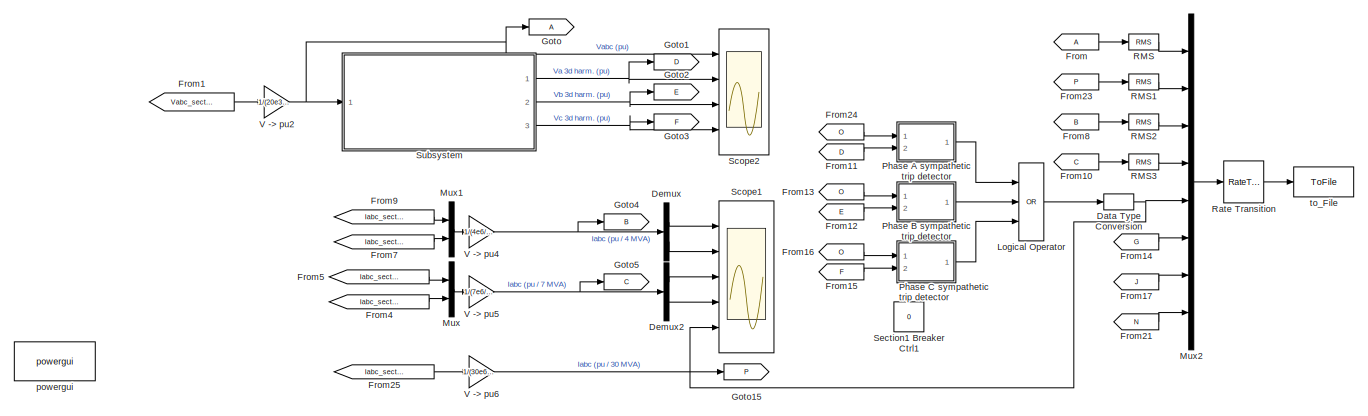
[diagram: root canvas - part 1/2, full width, top band]
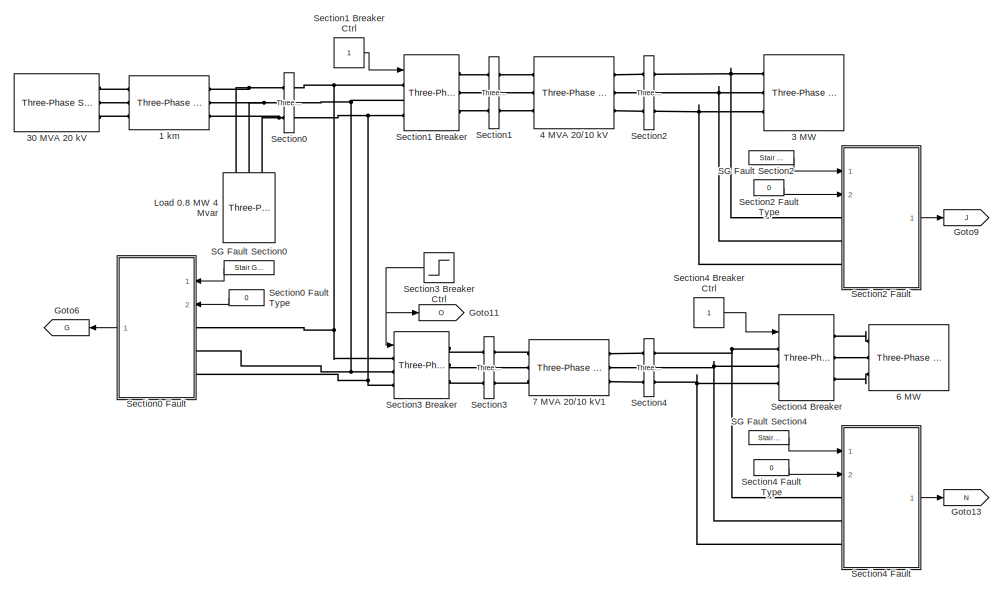
[diagram: root canvas - part 2/2, full width, bottom band]
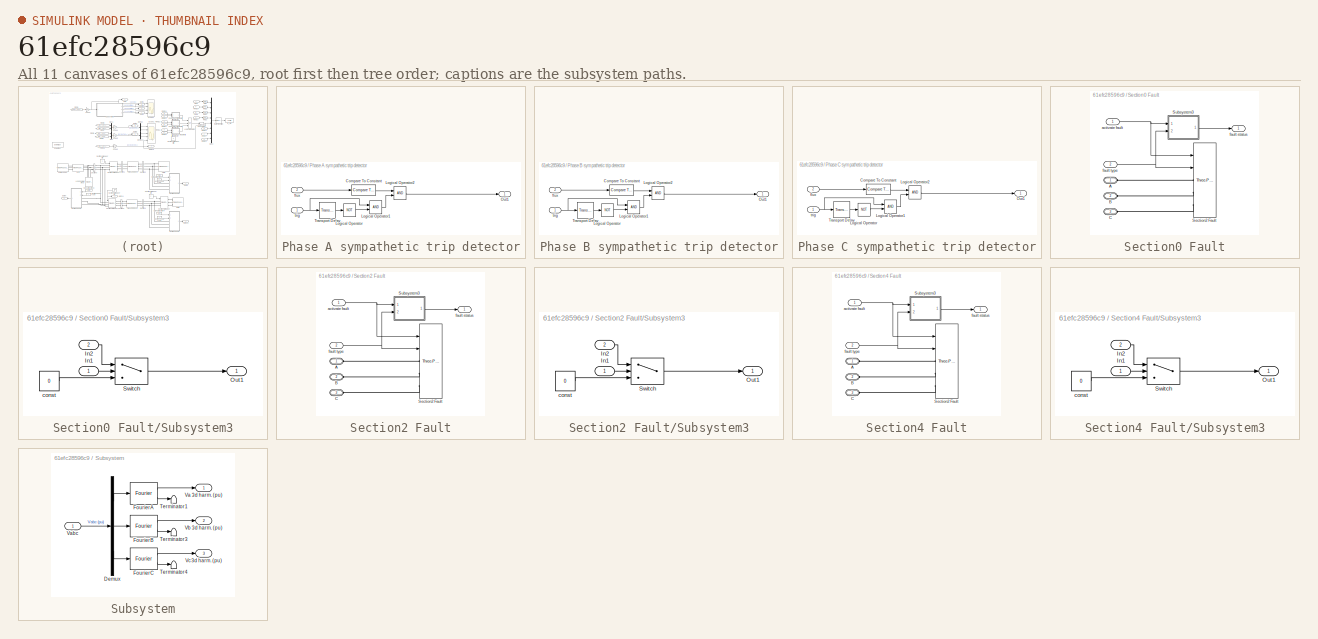
[diagram: thumbnail index - all 11 canvases of the model, root first then tree order]
MODEL slx_61efc28596c9
KIND model
CONFIG AbsTol = auto
CONFIG EnableMultiTasking = off
CONFIG FixedStep = 0.0001
CONFIG MaxStep = auto
CONFIG MinStep = auto
CONFIG RelTol = 1e-3
CONFIG SampleTimeConstraint = Unconstrained
CONFIG Solver = FixedStepAuto
CONFIG SolverName = FixedStepAuto
CONFIG StartTime = 0.0
CONFIG StopTime = 1
BLOCK [Reference] 1 km  REF=powerlib/Elements/Three-Phase
PI Section Line
  AttributesFormatString = \n
  Ports = [0, 0, 0, 0, 0, 3, 3]
  SourceBlock = powerlib/Elements/Three-Phase\nPI Section Line
  SourceProductBaseCode = PS
  SourceProductName = Simscape Electrical
  SourceType = Three-Phase PI Section Line
BLOCK [Reference] 3 MW  REF=powerlib/Elements/Three-Phase
Series RLC Load
  AttributesFormatString = \n
  Ports = [0, 0, 0, 0, 0, 3]
  SourceBlock = powerlib/Elements/Three-Phase\nSeries RLC Load
  SourceProductBaseCode = PS
  SourceProductName = Simscape Electrical
  SourceType = Three-Phase Series RLC Load
BLOCK [Reference] 30 MVA 20 kV  REF=powerlib/Electrical
Sources/Three-Phase Source
  Ports = [0, 0, 0, 0, 0, 0, 3]
  SourceBlock = powerlib/Electrical\nSources/Three-Phase Source
  SourceProductBaseCode = PS
  SourceProductName = Simscape Electrical
  SourceType = Three-Phase Source
BLOCK [Reference] 4 MVA 20//10 kV  REF=powerlib/Elements/Three-Phase
Transformer
(Two Windings)
  Ports = [0, 0, 0, 0, 0, 3, 3]
  SourceBlock = powerlib/Elements/Three-Phase\nTransformer\n(Two Windings)
  SourceProductBaseCode = PS
  SourceProductName = Simscape Electrical
  SourceType = Three-Phase Transformer (Two Windings)
BLOCK [Reference] 6 MW  REF=powerlib/Elements/Three-Phase
Series RLC Load
  AttributesFormatString = \n
  Ports = [0, 0, 0, 0, 0, 3]
  SourceBlock = powerlib/Elements/Three-Phase\nSeries RLC Load
  SourceProductBaseCode = PS
  SourceProductName = Simscape Electrical
  SourceType = Three-Phase Series RLC Load
BLOCK [Reference] 7 MVA 20//10 kV1  REF=powerlib/Elements/Three-Phase
Transformer
(Two Windings)
  Ports = [0, 0, 0, 0, 0, 3, 3]
  SourceBlock = powerlib/Elements/Three-Phase\nTransformer\n(Two Windings)
  SourceProductBaseCode = PS
  SourceProductName = Simscape Electrical
  SourceType = Three-Phase Transformer (Two Windings)
BLOCK [DataTypeConversion] Data Type Conversion
  OutDataTypeStr = double
  OutMax = [1]
  OutMin = [0]
  RndMeth = Floor
  SaturateOnIntegerOverflow = off
BLOCK [Demux] Demux
  DisplayOption = bar
  Outputs = 2
  Ports = [1, 2]
BLOCK [Demux] Demux2
  DisplayOption = bar
  Outputs = 2
  Ports = [1, 2]
BLOCK [From] From
BLOCK [From] From1
  CloseFcn = tagdialog Close
  GotoTag = Vabc_section0
  TagVisibility = global
BLOCK [From] From10
  GotoTag = C
BLOCK [From] From11
  GotoTag = D
BLOCK [From] From12
  GotoTag = E
BLOCK [From] From13
  GotoTag = O
BLOCK [From] From14
  GotoTag = G
BLOCK [From] From15
  GotoTag = F
BLOCK [From] From16
  GotoTag = O
BLOCK [From] From17
  GotoTag = J
BLOCK [From] From21
  GotoTag = N
BLOCK [From] From23
  GotoTag = P
BLOCK [From] From24
  GotoTag = O
BLOCK [From] From25
  GotoTag = Iabc_section0
  TagVisibility = global
BLOCK [From] From4
  GotoTag = Iabc_section4
  TagVisibility = global
BLOCK [From] From5
  GotoTag = Iabc_section3
  TagVisibility = global
BLOCK [From] From7
  GotoTag = Iabc_section2
  TagVisibility = global
BLOCK [From] From8
  GotoTag = B
BLOCK [From] From9
  GotoTag = Iabc_section1
  TagVisibility = global
BLOCK [Goto] Goto
BLOCK [Goto] Goto1
  GotoTag = D
BLOCK [Goto] Goto11
  GotoTag = O
BLOCK [Goto] Goto13
  GotoTag = N
BLOCK [Goto] Goto15
  GotoTag = P
BLOCK [Goto] Goto2
  GotoTag = E
BLOCK [Goto] Goto3
  GotoTag = F
BLOCK [Goto] Goto4
  GotoTag = B
BLOCK [Goto] Goto5
  GotoTag = C
BLOCK [Goto] Goto6
  GotoTag = G
BLOCK [Goto] Goto9
  GotoTag = J
BLOCK [Reference] Load 0.8 MW 4 Mvar  REF=powerlib/Elements/Three-Phase
Parallel RLC Load
  AttributesFormatString = \n
  Ports = [0, 0, 0, 0, 0, 3]
  SourceBlock = powerlib/Elements/Three-Phase\nParallel RLC Load
  SourceProductBaseCode = PS
  SourceProductName = Simscape Electrical
  SourceType = Three-Phase Parallel RLC Load
BLOCK [Logic] Logical Operator
  AllPortsSameDT = off
  Inputs = 3
  Operator = OR
  OutDataTypeStr = boolean
  Ports = [3, 1]
BLOCK [Mux] Mux
  DisplayOption = bar
  Inputs = 2
  Ports = [2, 1]
BLOCK [Mux] Mux1
  DisplayOption = bar
  Inputs = 2
  Ports = [2, 1]
BLOCK [Mux] Mux2
  DisplayOption = bar
  Inputs = 8
  Ports = [8, 1]
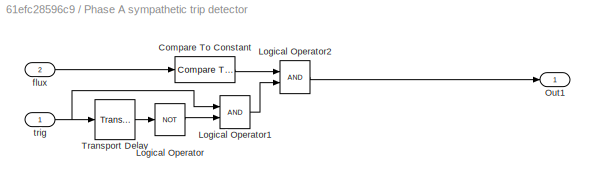
BLOCK [SubSystem] Phase A sympathetic trip detector
  Ports = [2, 1]
  RequestExecContextInheritance = off
BLOCK [Reference] Phase A sympathetic trip detector/Compare To Constant  REF=simulink/Logic and Bit
Operations/Compare
To Constant
  Ports = [1, 1]
  SourceBlock = simulink/Logic and Bit\nOperations/Compare\nTo Constant
  SourceProductBaseCode = SL
  SourceProductName = Simulink
  SourceType = Compare To Constant
BLOCK [Logic] Phase A sympathetic trip detector/Logical Operator
  AllPortsSameDT = off
  Operator = NOT
  OutDataTypeStr = boolean
  Ports = [1, 1]
BLOCK [Logic] Phase A sympathetic trip detector/Logical Operator1
  AllPortsSameDT = off
  OutDataTypeStr = boolean
  Ports = [2, 1]
BLOCK [Logic] Phase A sympathetic trip detector/Logical Operator2
  AllPortsSameDT = off
  OutDataTypeStr = boolean
  Ports = [2, 1]
BLOCK [Outport] Phase A sympathetic trip detector/Out1
  IconDisplay = Port number
BLOCK [TransportDelay] Phase A sympathetic trip detector/Transport Delay
  BufferSize = 4096
  DelayTime = 0.4
  Ports = [1, 1]
BLOCK [Inport] Phase A sympathetic trip detector/flux
  IconDisplay = Port number
  Port = 2
BLOCK [Inport] Phase A sympathetic trip detector/trig
  IconDisplay = Port number
BLOCK [SubSystem] Phase B sympathetic trip detector
  Ports = [2, 1]
  RequestExecContextInheritance = off
BLOCK [Reference] Phase B sympathetic trip detector/Compare To Constant  REF=simulink/Logic and Bit
Operations/Compare
To Constant
  Ports = [1, 1]
  SourceBlock = simulink/Logic and Bit\nOperations/Compare\nTo Constant
  SourceProductBaseCode = SL
  SourceProductName = Simulink
  SourceType = Compare To Constant
BLOCK [Logic] Phase B sympathetic trip detector/Logical Operator
  AllPortsSameDT = off
  Operator = NOT
  OutDataTypeStr = boolean
  Ports = [1, 1]
BLOCK [Logic] Phase B sympathetic trip detector/Logical Operator1
  AllPortsSameDT = off
  OutDataTypeStr = boolean
  Ports = [2, 1]
BLOCK [Logic] Phase B sympathetic trip detector/Logical Operator2
  AllPortsSameDT = off
  OutDataTypeStr = boolean
  Ports = [2, 1]
BLOCK [Outport] Phase B sympathetic trip detector/Out1
  IconDisplay = Port number
BLOCK [TransportDelay] Phase B sympathetic trip detector/Transport Delay
  BufferSize = 4096
  DelayTime = 0.4
  Ports = [1, 1]
BLOCK [Inport] Phase B sympathetic trip detector/flux
  IconDisplay = Port number
  Port = 2
BLOCK [Inport] Phase B sympathetic trip detector/trig
  IconDisplay = Port number
BLOCK [SubSystem] Phase C sympathetic trip detector
  Ports = [2, 1]
  RequestExecContextInheritance = off
BLOCK [Reference] Phase C sympathetic trip detector/Compare To Constant  REF=simulink/Logic and Bit
Operations/Compare
To Constant
  Ports = [1, 1]
  SourceBlock = simulink/Logic and Bit\nOperations/Compare\nTo Constant
  SourceProductBaseCode = SL
  SourceProductName = Simulink
  SourceType = Compare To Constant
BLOCK [Logic] Phase C sympathetic trip detector/Logical Operator
  AllPortsSameDT = off
  Operator = NOT
  OutDataTypeStr = boolean
  Ports = [1, 1]
BLOCK [Logic] Phase C sympathetic trip detector/Logical Operator1
  AllPortsSameDT = off
  OutDataTypeStr = boolean
  Ports = [2, 1]
BLOCK [Logic] Phase C sympathetic trip detector/Logical Operator2
  AllPortsSameDT = off
  OutDataTypeStr = boolean
  Ports = [2, 1]
BLOCK [Outport] Phase C sympathetic trip detector/Out1
  IconDisplay = Port number
BLOCK [TransportDelay] Phase C sympathetic trip detector/Transport Delay
  BufferSize = 4096
  DelayTime = 0.4
  Ports = [1, 1]
BLOCK [Inport] Phase C sympathetic trip detector/flux
  IconDisplay = Port number
  Port = 2
BLOCK [Inport] Phase C sympathetic trip detector/trig
  IconDisplay = Port number
BLOCK [Reference] RMS  REF=powerlib_meascontrol/Measurements/RMS
  Ports = [1, 1]
  SourceBlock = powerlib_meascontrol/Measurements/RMS
  SourceProductBaseCode = PS
  SourceProductName = Simscape Electrical
  SourceType = RMS
BLOCK [Reference] RMS1  REF=powerlib_meascontrol/Measurements/RMS
  Ports = [1, 1]
  SourceBlock = powerlib_meascontrol/Measurements/RMS
  SourceProductBaseCode = PS
  SourceProductName = Simscape Electrical
  SourceType = RMS
BLOCK [Reference] RMS2  REF=powerlib_meascontrol/Measurements/RMS
  Ports = [1, 1]
  SourceBlock = powerlib_meascontrol/Measurements/RMS
  SourceProductBaseCode = PS
  SourceProductName = Simscape Electrical
  SourceType = RMS
BLOCK [Reference] RMS3  REF=powerlib_meascontrol/Measurements/RMS
  Ports = [1, 1]
  SourceBlock = powerlib_meascontrol/Measurements/RMS
  SourceProductBaseCode = PS
  SourceProductName = Simscape Electrical
  SourceType = RMS
BLOCK [RateTransition] Rate Transition
  OutPortSampleTime = 0.0005
BLOCK [Reference] SG Fault Section0  REF=powerlib_meascontrol/Pulse & Signal
Generators/Stair
Generator
  Ports = [0, 1]
  SourceBlock = powerlib_meascontrol/Pulse & Signal\nGenerators/Stair\nGenerator
  SourceProductBaseCode = PS
  SourceProductName = Simscape Electrical
  SourceType = Stair Generator
BLOCK [Reference] SG Fault Section2  REF=powerlib_meascontrol/Pulse & Signal
Generators/Stair
Generator
  Ports = [0, 1]
  SourceBlock = powerlib_meascontrol/Pulse & Signal\nGenerators/Stair\nGenerator
  SourceProductBaseCode = PS
  SourceProductName = Simscape Electrical
  SourceType = Stair Generator
BLOCK [Reference] SG Fault Section4  REF=powerlib_meascontrol/Pulse & Signal
Generators/Stair
Generator
  Ports = [0, 1]
  SourceBlock = powerlib_meascontrol/Pulse & Signal\nGenerators/Stair\nGenerator
  SourceProductBaseCode = PS
  SourceProductName = Simscape Electrical
  SourceType = Stair Generator
BLOCK [Scope] Scope1
  Floating = off
  NumInputPorts = 5
  Ports = [5]
  ScopeSpecificationString = Simulink.scopes.TimeScopeBlockCfg('CurrentConfiguration', extmgr.ConfigurationSet(extmgr.Configuration('Core','General UI',true),extmgr.Configuration('Core','Source UI',true),extmgr.Configuration('Sources','WiredSimulink',true,'DataLoggingVariableName','ScopeData1','DataLogging',true),extmgr.Configuration('Visuals','Time Domain',true,'SerializedDisplays',{struct('MinYLimReal','-1.49544','MaxYLimRe...<+6316ch>
BLOCK [Scope] Scope2
  Floating = off
  NumInputPorts = 4
  Ports = [4]
  ScopeSpecificationString = Simulink.scopes.TimeScopeBlockCfg('CurrentConfiguration', extmgr.ConfigurationSet(extmgr.Configuration('Core','General UI',true),extmgr.Configuration('Core','Source UI',true),extmgr.Configuration('Sources','WiredSimulink',true,'DataLoggingVariableName','my_test_scope1','DataLogging',true),extmgr.Configuration('Visuals','Time Domain',true,'SerializedDisplays',{struct('MinYLimReal','-1.81795','MaxYL...<+3535ch>
BLOCK [Reference] Section0  REF=powerlib/Measurements/Three-Phase
V-I Measurement
  Ports = [0, 0, 0, 0, 0, 3, 3]
  SourceBlock = powerlib/Measurements/Three-Phase\nV-I Measurement
  SourceProductBaseCode = PS
  SourceProductName = Simscape Electrical
  SourceType = Three-Phase VI Measurement
BLOCK [SubSystem] Section0 Fault
  Ports = [2, 1, 0, 0, 0, 3]
  RequestExecContextInheritance = off
BLOCK [Constant] Section0 Fault Type
  Value = 0
BLOCK [PMIOPort] Section0 Fault/A
  Side = Left
BLOCK [PMIOPort] Section0 Fault/B
  Port = 2
  Side = Left
BLOCK [PMIOPort] Section0 Fault/C
  Port = 3
  Side = Left
BLOCK [Reference] Section0 Fault/Section2 Fault  REF=artemis/Tools /Custom Models/Three-Phase Fault
  Ports = [2, 0, 0, 0, 0, 3]
  SourceBlock = artemis/Tools /Custom Models/Three-Phase Fault
  SourceType = Three-Phase Fault
BLOCK [SubSystem] Section0 Fault/Subsystem3
  Ports = [2, 1]
  RequestExecContextInheritance = off
BLOCK [Inport] Section0 Fault/Subsystem3/In1
  IconDisplay = Port number
BLOCK [Inport] Section0 Fault/Subsystem3/In2
  IconDisplay = Port number
  Port = 2
BLOCK [Outport] Section0 Fault/Subsystem3/Out1
  IconDisplay = Port number
BLOCK [Switch] Section0 Fault/Subsystem3/Switch
  Criteria = u2 > Threshold
  InputSameDT = off
  SaturateOnIntegerOverflow = off
BLOCK [Constant] Section0 Fault/Subsystem3/const
  Value = 0
BLOCK [Inport] Section0 Fault/activate fault
  IconDisplay = Port number
BLOCK [Outport] Section0 Fault/fault status
  IconDisplay = Port number
BLOCK [Inport] Section0 Fault/fault type
  IconDisplay = Port number
  Port = 2
BLOCK [Reference] Section1  REF=powerlib/Measurements/Three-Phase
V-I Measurement
  Ports = [0, 0, 0, 0, 0, 3, 3]
  SourceBlock = powerlib/Measurements/Three-Phase\nV-I Measurement
  SourceProductBaseCode = PS
  SourceProductName = Simscape Electrical
  SourceType = Three-Phase VI Measurement
BLOCK [Reference] Section1 Breaker  REF=powerlib/Elements/Three-Phase Breaker
  Ports = [1, 0, 0, 0, 0, 3, 3]
  SourceBlock = powerlib/Elements/Three-Phase Breaker
  SourceProductBaseCode = PS
  SourceProductName = Simscape Electrical
  SourceType = Three-Phase Breaker
BLOCK [Constant] Section1 Breaker Ctrl
BLOCK [Constant] Section1 Breaker Ctrl1
  Value = 0
BLOCK [Reference] Section2  REF=powerlib/Measurements/Three-Phase
V-I Measurement
  Ports = [0, 0, 0, 0, 0, 3, 3]
  SourceBlock = powerlib/Measurements/Three-Phase\nV-I Measurement
  SourceProductBaseCode = PS
  SourceProductName = Simscape Electrical
  SourceType = Three-Phase VI Measurement
BLOCK [SubSystem] Section2 Fault
  Ports = [2, 1, 0, 0, 0, 3]
  RequestExecContextInheritance = off
BLOCK [Constant] Section2 Fault Type
  Value = 0
BLOCK [PMIOPort] Section2 Fault/A
  Side = Left
BLOCK [PMIOPort] Section2 Fault/B
  Port = 2
  Side = Left
BLOCK [PMIOPort] Section2 Fault/C
  Port = 3
  Side = Left
BLOCK [Reference] Section2 Fault/Section2 Fault  REF=artemis/Tools /Custom Models/Three-Phase Fault
  Ports = [2, 0, 0, 0, 0, 3]
  SourceBlock = artemis/Tools /Custom Models/Three-Phase Fault
  SourceType = Three-Phase Fault
BLOCK [SubSystem] Section2 Fault/Subsystem3
  Ports = [2, 1]
  RequestExecContextInheritance = off
BLOCK [Inport] Section2 Fault/Subsystem3/In1
  IconDisplay = Port number
BLOCK [Inport] Section2 Fault/Subsystem3/In2
  IconDisplay = Port number
  Port = 2
BLOCK [Outport] Section2 Fault/Subsystem3/Out1
  IconDisplay = Port number
BLOCK [Switch] Section2 Fault/Subsystem3/Switch
  Criteria = u2 > Threshold
  InputSameDT = off
  SaturateOnIntegerOverflow = off
BLOCK [Constant] Section2 Fault/Subsystem3/const
  Value = 0
BLOCK [Inport] Section2 Fault/activate fault
  IconDisplay = Port number
BLOCK [Outport] Section2 Fault/fault status
  IconDisplay = Port number
BLOCK [Inport] Section2 Fault/fault type
  IconDisplay = Port number
  Port = 2
BLOCK [Reference] Section3  REF=powerlib/Measurements/Three-Phase
V-I Measurement
  Ports = [0, 0, 0, 0, 0, 3, 3]
  SourceBlock = powerlib/Measurements/Three-Phase\nV-I Measurement
  SourceProductBaseCode = PS
  SourceProductName = Simscape Electrical
  SourceType = Three-Phase VI Measurement
BLOCK [Reference] Section3 Breaker  REF=powerlib/Elements/Three-Phase Breaker
  Ports = [1, 0, 0, 0, 0, 3, 3]
  SourceBlock = powerlib/Elements/Three-Phase Breaker
  SourceProductBaseCode = PS
  SourceProductName = Simscape Electrical
  SourceType = Three-Phase Breaker
BLOCK [Step] Section3 Breaker Ctrl
  SampleTime = 0
  Time = 0.5
BLOCK [Reference] Section4  REF=powerlib/Measurements/Three-Phase
V-I Measurement
  Ports = [0, 0, 0, 0, 0, 3, 3]
  SourceBlock = powerlib/Measurements/Three-Phase\nV-I Measurement
  SourceProductBaseCode = PS
  SourceProductName = Simscape Electrical
  SourceType = Three-Phase VI Measurement
BLOCK [Reference] Section4 Breaker  REF=powerlib/Elements/Three-Phase Breaker
  Ports = [1, 0, 0, 0, 0, 3, 3]
  SourceBlock = powerlib/Elements/Three-Phase Breaker
  SourceProductBaseCode = PS
  SourceProductName = Simscape Electrical
  SourceType = Three-Phase Breaker
BLOCK [Constant] Section4 Breaker Ctrl
BLOCK [SubSystem] Section4 Fault
  Ports = [2, 1, 0, 0, 0, 3]
  RequestExecContextInheritance = off
BLOCK [Constant] Section4 Fault Type
  Value = 0
BLOCK [PMIOPort] Section4 Fault/A
  Side = Left
BLOCK [PMIOPort] Section4 Fault/B
  Port = 2
  Side = Left
BLOCK [PMIOPort] Section4 Fault/C
  Port = 3
  Side = Left
BLOCK [Reference] Section4 Fault/Section2 Fault  REF=artemis/Tools /Custom Models/Three-Phase Fault
  Ports = [2, 0, 0, 0, 0, 3]
  SourceBlock = artemis/Tools /Custom Models/Three-Phase Fault
  SourceType = Three-Phase Fault
BLOCK [SubSystem] Section4 Fault/Subsystem3
  Ports = [2, 1]
  RequestExecContextInheritance = off
BLOCK [Inport] Section4 Fault/Subsystem3/In1
  IconDisplay = Port number
BLOCK [Inport] Section4 Fault/Subsystem3/In2
  IconDisplay = Port number
  Port = 2
BLOCK [Outport] Section4 Fault/Subsystem3/Out1
  IconDisplay = Port number
BLOCK [Switch] Section4 Fault/Subsystem3/Switch
  Criteria = u2 > Threshold
  InputSameDT = off
  SaturateOnIntegerOverflow = off
BLOCK [Constant] Section4 Fault/Subsystem3/const
  Value = 0
BLOCK [Inport] Section4 Fault/activate fault
  IconDisplay = Port number
BLOCK [Outport] Section4 Fault/fault status
  IconDisplay = Port number
BLOCK [Inport] Section4 Fault/fault type
  IconDisplay = Port number
  Port = 2
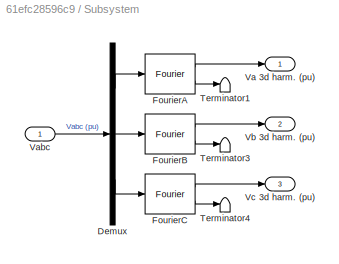
BLOCK [SubSystem] Subsystem
  Ports = [1, 3]
  RequestExecContextInheritance = off
BLOCK [Demux] Subsystem/Demux
  DisplayOption = bar
  Outputs = 3
  Ports = [1, 3]
BLOCK [Reference] Subsystem/FourierA  REF=powerlib_meascontrol/Measurements/Fourier
  Ports = [1, 2]
  SourceBlock = powerlib_meascontrol/Measurements/Fourier
  SourceProductBaseCode = PS
  SourceProductName = Simscape Electrical
  SourceType = Fourier
BLOCK [Reference] Subsystem/FourierB  REF=powerlib_meascontrol/Measurements/Fourier
  Ports = [1, 2]
  SourceBlock = powerlib_meascontrol/Measurements/Fourier
  SourceProductBaseCode = PS
  SourceProductName = Simscape Electrical
  SourceType = Fourier
BLOCK [Reference] Subsystem/FourierC  REF=powerlib_meascontrol/Measurements/Fourier
  Ports = [1, 2]
  SourceBlock = powerlib_meascontrol/Measurements/Fourier
  SourceProductBaseCode = PS
  SourceProductName = Simscape Electrical
  SourceType = Fourier
BLOCK [Terminator] Subsystem/Terminator1
BLOCK [Terminator] Subsystem/Terminator3
BLOCK [Terminator] Subsystem/Terminator4
BLOCK [Outport] Subsystem/Va 3d harm. (pu)
  IconDisplay = Port number
BLOCK [Inport] Subsystem/Vabc
  IconDisplay = Port number
BLOCK [Outport] Subsystem/Vb 3d harm. (pu)
  IconDisplay = Port number
  Port = 2
BLOCK [Outport] Subsystem/Vc 3d harm. (pu)
  IconDisplay = Port number
  Port = 3
BLOCK [Gain] V -> pu2
  Gain = 1/(20e3/sqrt(3)*sqrt(2))
BLOCK [Gain] V -> pu4
  Gain = 1/(4e6/20e3/sqrt(3)*sqrt(2))
BLOCK [Gain] V -> pu5
  Gain = 1/(7e6/20e3/sqrt(3)*sqrt(2))
BLOCK [Gain] V -> pu6
  Gain = 1/(30e6/20e3/sqrt(3)*sqrt(2))
BLOCK [Reference] powergui  REF=powerlib/powergui
  Ports = []
  Priority = 1
  SourceBlock = powerlib/powergui
  SourceProductBaseCode = PS
  SourceProductName = Simscape Electrical
  SourceType = PSB option menu block
BLOCK [ToFile] to_File
  Filename = test
  Ports = [1]
NET Data Type Conversion:1 -> Mux2:5, Scope1:5
LINE Demux2:1 -> Scope1:3
LINE Demux2:2 -> Scope1:4
LINE Demux:1 -> Scope1:1
LINE Demux:2 -> Scope1:2
LINE From10:1 -> RMS3:1
LINE From11:1 -> Phase A sympathetic trip detector:2
LINE From12:1 -> Phase B sympathetic trip detector:2
LINE From13:1 -> Phase B sympathetic trip detector:1
LINE From14:1 -> Mux2:6
LINE From15:1 -> Phase C sympathetic trip detector:2
LINE From16:1 -> Phase C sympathetic trip detector:1
LINE From17:1 -> Mux2:7
LINE From1:1 -> V -> pu2:1
LINE From21:1 -> Mux2:8
LINE From23:1 -> RMS1:1
LINE From24:1 -> Phase A sympathetic trip detector:1
LINE From25:1 -> V -> pu6:1
LINE From4:1 -> Mux:2
LINE From5:1 -> Mux:1
LINE From7:1 -> Mux1:2
LINE From8:1 -> RMS2:1
LINE From9:1 -> Mux1:1
LINE From:1 -> RMS:1
LINE Logical Operator:1 -> Data Type Conversion:1
LINE Mux1:1 -> V -> pu4:1
LINE Mux2:1 -> Rate Transition:1
LINE Mux:1 -> V -> pu5:1
LINE Phase A sympathetic trip detector/Compare To Constant:1 -> Phase A sympathetic trip detector/Logical Operator2:1
LINE Phase A sympathetic trip detector/Logical Operator1:1 -> Phase A sympathetic trip detector/Logical Operator2:2
LINE Phase A sympathetic trip detector/Logical Operator2:1 -> Phase A sympathetic trip detector/Out1:1
LINE Phase A sympathetic trip detector/Logical Operator:1 -> Phase A sympathetic trip detector/Logical Operator1:2
LINE Phase A sympathetic trip detector/Transport Delay:1 -> Phase A sympathetic trip detector/Logical Operator:1
LINE Phase A sympathetic trip detector/flux:1 -> Phase A sympathetic trip detector/Compare To Constant:1
NET Phase A sympathetic trip detector/trig:1 -> Phase A sympathetic trip detector/Logical Operator1:1, Phase A sympathetic trip detector/Transport Delay:1
LINE Phase A sympathetic trip detector:1 -> Logical Operator:1
LINE Phase B sympathetic trip detector/Compare To Constant:1 -> Phase B sympathetic trip detector/Logical Operator2:1
LINE Phase B sympathetic trip detector/Logical Operator1:1 -> Phase B sympathetic trip detector/Logical Operator2:2
LINE Phase B sympathetic trip detector/Logical Operator2:1 -> Phase B sympathetic trip detector/Out1:1
LINE Phase B sympathetic trip detector/Logical Operator:1 -> Phase B sympathetic trip detector/Logical Operator1:2
LINE Phase B sympathetic trip detector/Transport Delay:1 -> Phase B sympathetic trip detector/Logical Operator:1
LINE Phase B sympathetic trip detector/flux:1 -> Phase B sympathetic trip detector/Compare To Constant:1
NET Phase B sympathetic trip detector/trig:1 -> Phase B sympathetic trip detector/Logical Operator1:1, Phase B sympathetic trip detector/Transport Delay:1
LINE Phase B sympathetic trip detector:1 -> Logical Operator:2
LINE Phase C sympathetic trip detector/Compare To Constant:1 -> Phase C sympathetic trip detector/Logical Operator2:1
LINE Phase C sympathetic trip detector/Logical Operator1:1 -> Phase C sympathetic trip detector/Logical Operator2:2
LINE Phase C sympathetic trip detector/Logical Operator2:1 -> Phase C sympathetic trip detector/Out1:1
LINE Phase C sympathetic trip detector/Logical Operator:1 -> Phase C sympathetic trip detector/Logical Operator1:2
LINE Phase C sympathetic trip detector/Transport Delay:1 -> Phase C sympathetic trip detector/Logical Operator:1
LINE Phase C sympathetic trip detector/flux:1 -> Phase C sympathetic trip detector/Compare To Constant:1
NET Phase C sympathetic trip detector/trig:1 -> Phase C sympathetic trip detector/Logical Operator1:1, Phase C sympathetic trip detector/Transport Delay:1
LINE Phase C sympathetic trip detector:1 -> Logical Operator:3
LINE RMS1:1 -> Mux2:2
LINE RMS2:1 -> Mux2:3
LINE RMS3:1 -> Mux2:4
LINE RMS:1 -> Mux2:1
LINE Rate Transition:1 -> to_File:1
LINE SG Fault Section0:1 -> Section0 Fault:1
LINE SG Fault Section2:1 -> Section2 Fault:1
LINE SG Fault Section4:1 -> Section4 Fault:1
LINE Section0 Fault Type:1 -> Section0 Fault:2
LINE Section0 Fault/Subsystem3/In1:1 -> Section0 Fault/Subsystem3/Switch:2
LINE Section0 Fault/Subsystem3/In2:1 -> Section0 Fault/Subsystem3/Switch:1
LINE Section0 Fault/Subsystem3/Switch:1 -> Section0 Fault/Subsystem3/Out1:1
LINE Section0 Fault/Subsystem3/const:1 -> Section0 Fault/Subsystem3/Switch:3
LINE Section0 Fault/Subsystem3:1 -> Section0 Fault/fault status:1
NET Section0 Fault/activate fault:1 -> Section0 Fault/Section2 Fault:1, Section0 Fault/Subsystem3:1
NET Section0 Fault/fault type:1 -> Section0 Fault/Section2 Fault:2, Section0 Fault/Subsystem3:2
LINE Section0 Fault:1 -> Goto6:1
LINE Section1 Breaker Ctrl:1 -> Section1 Breaker:1
LINE Section2 Fault Type:1 -> Section2 Fault:2
LINE Section2 Fault/Subsystem3/In1:1 -> Section2 Fault/Subsystem3/Switch:2
LINE Section2 Fault/Subsystem3/In2:1 -> Section2 Fault/Subsystem3/Switch:1
LINE Section2 Fault/Subsystem3/Switch:1 -> Section2 Fault/Subsystem3/Out1:1
LINE Section2 Fault/Subsystem3/const:1 -> Section2 Fault/Subsystem3/Switch:3
LINE Section2 Fault/Subsystem3:1 -> Section2 Fault/fault status:1
NET Section2 Fault/activate fault:1 -> Section2 Fault/Section2 Fault:1, Section2 Fault/Subsystem3:1
NET Section2 Fault/fault type:1 -> Section2 Fault/Section2 Fault:2, Section2 Fault/Subsystem3:2
LINE Section2 Fault:1 -> Goto9:1
NET Section3 Breaker Ctrl:1 -> Goto11:1, Section3 Breaker:1
LINE Section4 Breaker Ctrl:1 -> Section4 Breaker:1
LINE Section4 Fault Type:1 -> Section4 Fault:2
LINE Section4 Fault/Subsystem3/In1:1 -> Section4 Fault/Subsystem3/Switch:2
LINE Section4 Fault/Subsystem3/In2:1 -> Section4 Fault/Subsystem3/Switch:1
LINE Section4 Fault/Subsystem3/Switch:1 -> Section4 Fault/Subsystem3/Out1:1
LINE Section4 Fault/Subsystem3/const:1 -> Section4 Fault/Subsystem3/Switch:3
LINE Section4 Fault/Subsystem3:1 -> Section4 Fault/fault status:1
NET Section4 Fault/activate fault:1 -> Section4 Fault/Section2 Fault:1, Section4 Fault/Subsystem3:1
NET Section4 Fault/fault type:1 -> Section4 Fault/Section2 Fault:2, Section4 Fault/Subsystem3:2
LINE Section4 Fault:1 -> Goto13:1
LINE Subsystem/Demux:1 -> Subsystem/FourierA:1
LINE Subsystem/Demux:2 -> Subsystem/FourierB:1
LINE Subsystem/Demux:3 -> Subsystem/FourierC:1
LINE Subsystem/FourierA:1 -> Subsystem/Va 3d harm. (pu):1
LINE Subsystem/FourierA:2 -> Subsystem/Terminator1:1
LINE Subsystem/FourierB:1 -> Subsystem/Vb 3d harm. (pu):1
LINE Subsystem/FourierB:2 -> Subsystem/Terminator3:1
LINE Subsystem/FourierC:1 -> Subsystem/Vc 3d harm. (pu):1
LINE Subsystem/FourierC:2 -> Subsystem/Terminator4:1
LINE Subsystem/Vabc:1 -> Subsystem/Demux:1
NET Subsystem:1 -> Goto1:1, Scope2:2
NET Subsystem:2 -> Goto2:1, Scope2:3
NET Subsystem:3 -> Goto3:1, Scope2:4
NET V -> pu2:1 -> Goto:1, Scope2:1, Subsystem:1
NET V -> pu4:1 -> Demux:1, Goto4:1
NET V -> pu5:1 -> Demux2:1, Goto5:1
LINE V -> pu6:1 -> Goto15:1
PLINE 1 km:LConn1 -- 30 MVA 20 kV:RConn1
PLINE 1 km:LConn2 -- 30 MVA 20 kV:RConn2
PLINE 1 km:LConn3 -- 30 MVA 20 kV:RConn3
PNET net1: 1 km:RConn1 -- Load 0.8 MW 4 Mvar:LConn1 -- Section0:LConn1
PNET net2: 1 km:RConn2 -- Load 0.8 MW 4 Mvar:LConn2 -- Section0:LConn2
PNET net3: 1 km:RConn3 -- Load 0.8 MW 4 Mvar:LConn3 -- Section0:LConn3
PNET net4: 3 MW:LConn1 -- Section2 Fault:LConn1 -- Section2:RConn1
PNET net5: 3 MW:LConn2 -- Section2 Fault:LConn2 -- Section2:RConn2
PNET net6: 3 MW:LConn3 -- Section2 Fault:LConn3 -- Section2:RConn3
PLINE 4 MVA 20//10 kV:LConn1 -- Section1:RConn1
PLINE 4 MVA 20//10 kV:LConn2 -- Section1:RConn2
PLINE 4 MVA 20//10 kV:LConn3 -- Section1:RConn3
PLINE 4 MVA 20//10 kV:RConn1 -- Section2:LConn1
PLINE 4 MVA 20//10 kV:RConn2 -- Section2:LConn2
PLINE 4 MVA 20//10 kV:RConn3 -- Section2:LConn3
PLINE 6 MW:LConn1 -- Section4 Breaker:RConn1
PLINE 6 MW:LConn2 -- Section4 Breaker:RConn2
PLINE 6 MW:LConn3 -- Section4 Breaker:RConn3
PLINE 7 MVA 20//10 kV1:LConn1 -- Section3:RConn1
PLINE 7 MVA 20//10 kV1:LConn2 -- Section3:RConn2
PLINE 7 MVA 20//10 kV1:LConn3 -- Section3:RConn3
PLINE 7 MVA 20//10 kV1:RConn1 -- Section4:LConn1
PLINE 7 MVA 20//10 kV1:RConn2 -- Section4:LConn2
PLINE 7 MVA 20//10 kV1:RConn3 -- Section4:LConn3
PLINE Section0 Fault/A:RConn1 -- Section0 Fault/Section2 Fault:LConn1
PLINE Section0 Fault/B:RConn1 -- Section0 Fault/Section2 Fault:LConn2
PLINE Section0 Fault/C:RConn1 -- Section0 Fault/Section2 Fault:LConn3
PNET net7: Section0 Fault:LConn1 -- Section0:RConn1 -- Section1 Breaker:LConn1 -- Section3 Breaker:LConn1
PNET net8: Section0 Fault:LConn2 -- Section0:RConn2 -- Section1 Breaker:LConn2 -- Section3 Breaker:LConn2
PNET net9: Section0 Fault:LConn3 -- Section0:RConn3 -- Section1 Breaker:LConn3 -- Section3 Breaker:LConn3
PLINE Section1 Breaker:RConn1 -- Section1:LConn1
PLINE Section1 Breaker:RConn2 -- Section1:LConn2
PLINE Section1 Breaker:RConn3 -- Section1:LConn3
PLINE Section2 Fault/A:RConn1 -- Section2 Fault/Section2 Fault:LConn1
PLINE Section2 Fault/B:RConn1 -- Section2 Fault/Section2 Fault:LConn2
PLINE Section2 Fault/C:RConn1 -- Section2 Fault/Section2 Fault:LConn3
PLINE Section3 Breaker:RConn1 -- Section3:LConn1
PLINE Section3 Breaker:RConn2 -- Section3:LConn2
PLINE Section3 Breaker:RConn3 -- Section3:LConn3
PNET net10: Section4 Breaker:LConn1 -- Section4 Fault:LConn1 -- Section4:RConn1
PNET net11: Section4 Breaker:LConn2 -- Section4 Fault:LConn2 -- Section4:RConn2
PNET net12: Section4 Breaker:LConn3 -- Section4 Fault:LConn3 -- Section4:RConn3
PLINE Section4 Fault/A:RConn1 -- Section4 Fault/Section2 Fault:LConn1
PLINE Section4 Fault/B:RConn1 -- Section4 Fault/Section2 Fault:LConn2
PLINE Section4 Fault/C:RConn1 -- Section4 Fault/Section2 Fault:LConn3
note: NET lines group one-source signal fan-out (src -> all destinations, sorted); 1:1 wires keep LINE; PNET lines group multi-terminal physical nets as a canonical sorted terminal list (undirected conserving connections); 2-terminal nets keep the pairwise PLINE form
